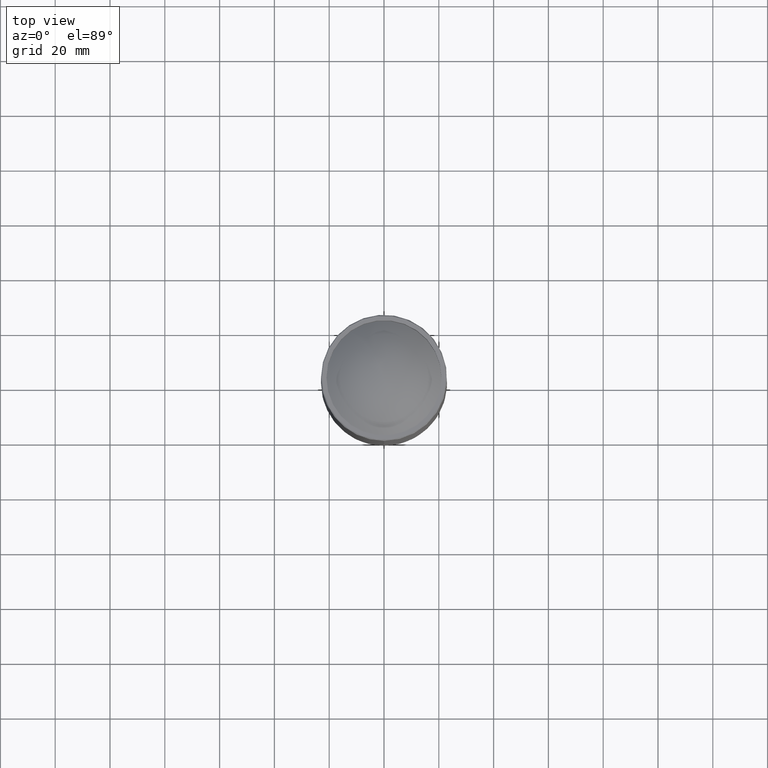
[diagram: clean part render]
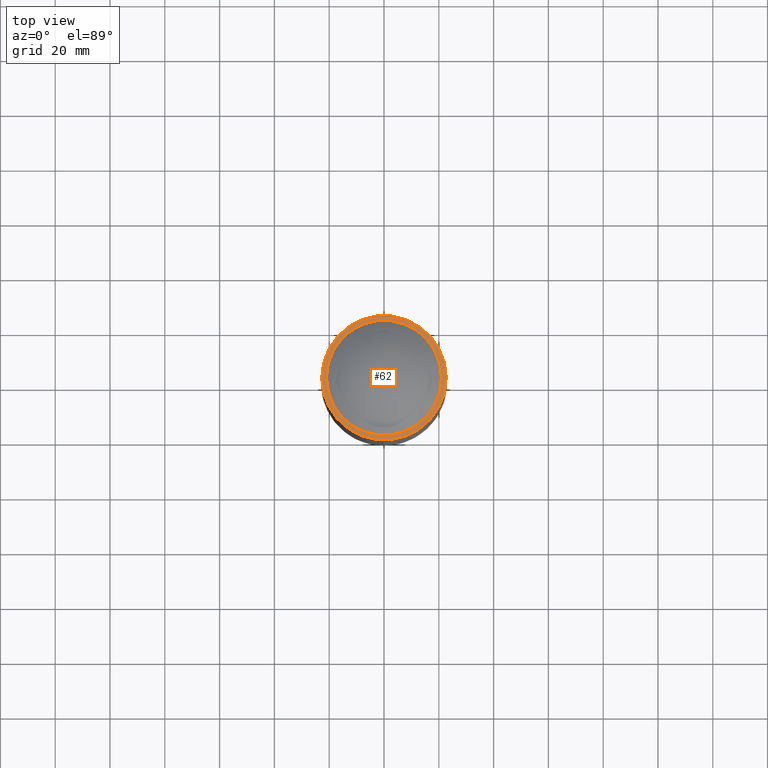
[diagram: same view with one face highlighted and labeled with its STEP entity id]
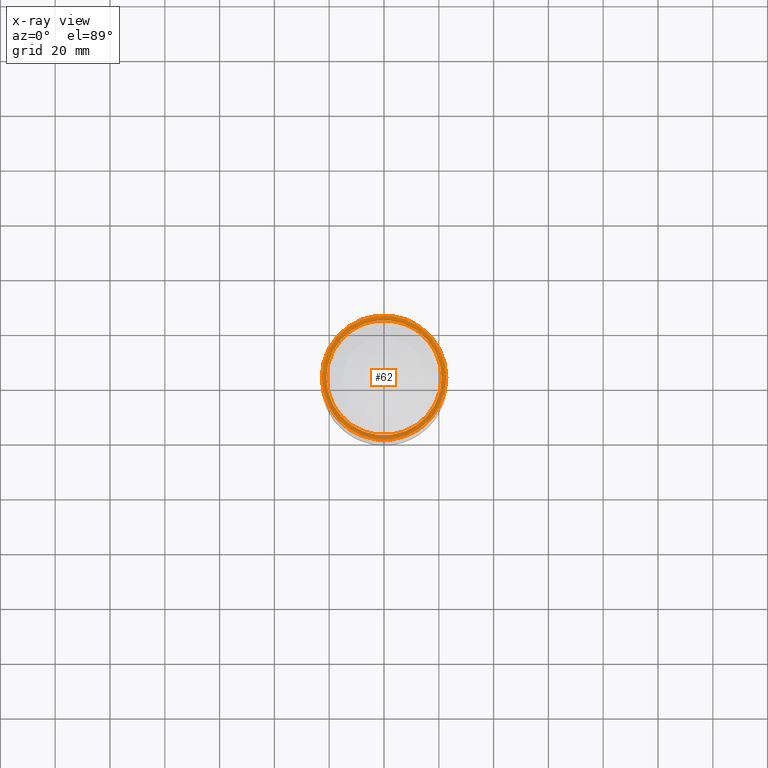
[diagram: x-ray of the same camera — body ghosted, the highlighted face saturated]
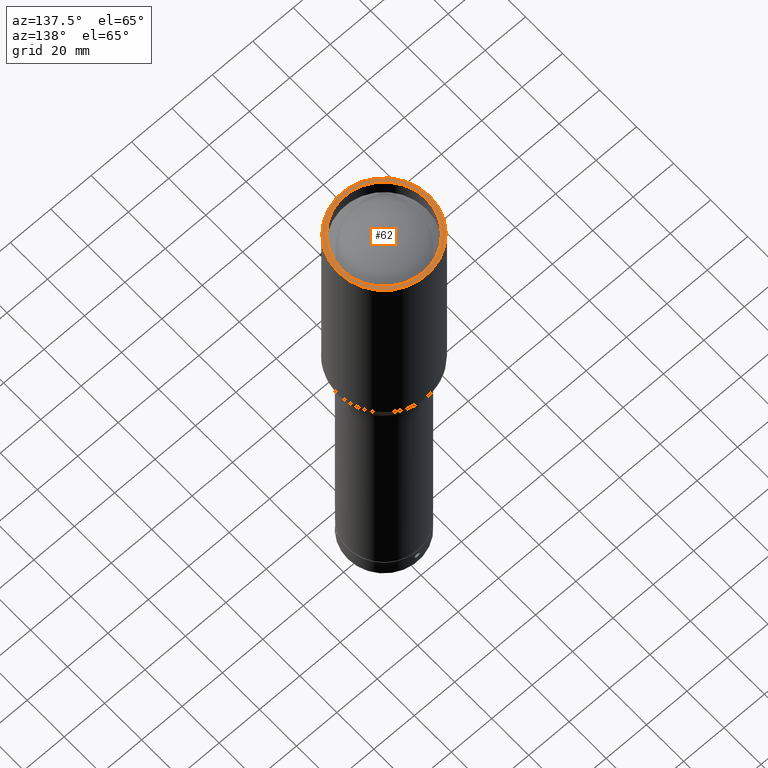
[diagram: same view with one face highlighted and labeled with its STEP entity id]
A machine part, top view. The second image highlights one B-rep face of the part: STEP entity #62.
The next image is the same camera in x-ray: the body ghosted, the highlighted face saturated — about 0% of this face is hidden behind the body in this view.
A second angle (auxiliary view) of the same face is appended — the face is thin or edge-on in the first view.
In plain terms, the highlighted planar face has unit normal (-0, 0, -1).
Its self-contained STEP definition (entity closure, byte-faithful):
#62 = ADVANCED_FACE ( 'NONE', ( #306, #1131 ), #1244, .F. ) ;
#131 = CARTESIAN_POINT ( 'NONE',  ( 0.000000000000000000, 0.000000000000000000, -394.0000000000000000 ) ) ;
#148 = DIRECTION ( 'NONE',  ( 0.000000000000000000, 1.000000000000000000, 2.929593744247951149E-19 ) ) ;
#199 = CIRCLE ( 'NONE', #369, 21.00000000000000000 ) ;
#263 = VERTEX_POINT ( 'NONE', #1209 ) ;
#300 = ORIENTED_EDGE ( 'NONE', *, *, #1104, .F. ) ;
#306 = FACE_BOUND ( 'NONE', #939, .T. ) ;
#369 = AXIS2_PLACEMENT_3D ( 'NONE', #131, #1057, #741 ) ;
#389 = ORIENTED_EDGE ( 'NONE', *, *, #574, .F. ) ;
#410 = VERTEX_POINT ( 'NONE', #1246 ) ;
#574 = EDGE_CURVE ( 'NONE', #263, #263, #199, .T. ) ;
#713 = AXIS2_PLACEMENT_3D ( 'NONE', #952, #1172, #869 ) ;
#719 = AXIS2_PLACEMENT_3D ( 'NONE', #1186, #960, #148 ) ;
#741 = DIRECTION ( 'NONE',  ( 1.000000000000000000, 0.000000000000000000, 0.000000000000000000 ) ) ;
#775 = EDGE_LOOP ( 'NONE', ( #300 ) ) ;
#869 = DIRECTION ( 'NONE',  ( -1.000000000000000000, 0.000000000000000000, 0.000000000000000000 ) ) ;
#939 = EDGE_LOOP ( 'NONE', ( #389 ) ) ;
#952 = CARTESIAN_POINT ( 'NONE',  ( 1.734723475976807094E-15, 1.315393551788304693E-14, -394.0000000000000000 ) ) ;
#960 = DIRECTION ( 'NONE',  ( -3.851859888774471706E-33, 2.929593744247951149E-19, -1.000000000000000000 ) ) ;
#1057 = DIRECTION ( 'NONE',  ( 0.000000000000000000, 0.000000000000000000, 1.000000000000000000 ) ) ;
#1104 = EDGE_CURVE ( 'NONE', #410, #410, #1315, .T. ) ;
#1131 = FACE_OUTER_BOUND ( 'NONE', #775, .T. ) ;
#1172 = DIRECTION ( 'NONE',  ( 0.000000000000000000, 0.000000000000000000, -1.000000000000000000 ) ) ;
#1186 = CARTESIAN_POINT ( 'NONE',  ( 1.909536233141016293E-15, 21.75000000000001066, -394.0000000000000000 ) ) ;
#1209 = CARTESIAN_POINT ( 'NONE',  ( 21.00000000000000000, 0.000000000000000000, -394.0000000000000000 ) ) ;
#1244 = PLANE ( 'NONE',  #719 ) ;
#1246 = CARTESIAN_POINT ( 'NONE',  ( -22.69999999999999929, 1.315393551788304693E-14, -394.0000000000000000 ) ) ;
#1315 = CIRCLE ( 'NONE', #713, 22.69999999999999929 ) ;